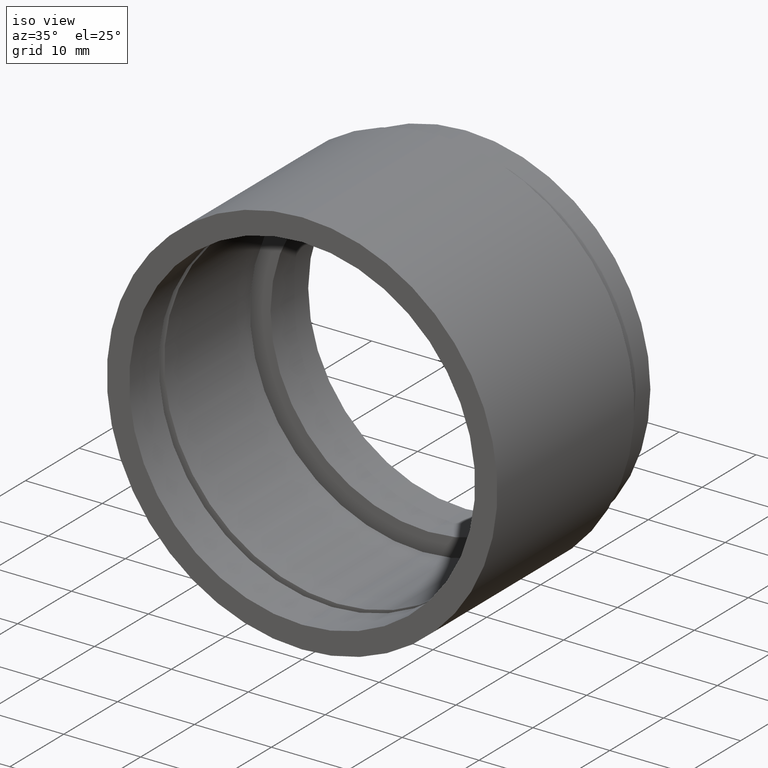
[diagram: clean part render]
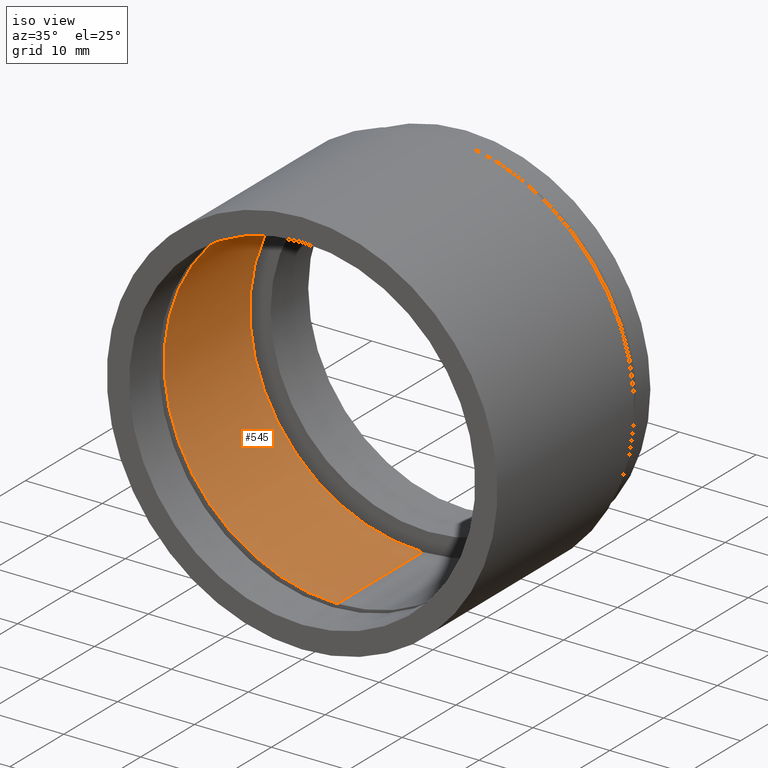
[diagram: same view with one face highlighted and labeled with its STEP entity id]
A machine part, iso view. The second image highlights one B-rep face of the part: STEP entity #545.
In plain terms, the highlighted cylindrical surface (partial cylindrical patch) has radius 22.5 mm, axis along (-0, 1, -0).
Its self-contained STEP definition (entity closure, byte-faithful):
#11 = CARTESIAN_POINT ( 'NONE',  ( 2.755455298081547100E-015, 161.3761669434274500, -22.50000000000002100 ) ) ;
#28 = CARTESIAN_POINT ( 'NONE',  ( 2.755455298081547100E-015, 22.39999999999997700, -22.50000000000002100 ) ) ;
#35 = EDGE_CURVE ( 'NONE', #54, #797, #493, .T. ) ;
#48 = DIRECTION ( 'NONE',  ( 0.0000000000000000000, 0.0000000000000000000, 1.000000000000000000 ) ) ;
#52 = ORIENTED_EDGE ( 'NONE', *, *, #489, .F. ) ;
#54 = VERTEX_POINT ( 'NONE', #127 ) ;
#58 = AXIS2_PLACEMENT_3D ( 'NONE', #679, #315, #614 ) ;
#67 = CYLINDRICAL_SURFACE ( 'NONE', #746, 22.50000000000002100 ) ;
#75 = EDGE_CURVE ( 'NONE', #54, #359, #591, .T. ) ;
#79 = DIRECTION ( 'NONE',  ( 0.0000000000000000000, 0.0000000000000000000, 1.000000000000000000 ) ) ;
#125 = FACE_OUTER_BOUND ( 'NONE', #223, .T. ) ;
#127 = CARTESIAN_POINT ( 'NONE',  ( 2.755455298081547100E-015, 6.499999999999977800, -22.50000000000002100 ) ) ;
#152 = LINE ( 'NONE', #491, #810 ) ;
#183 = DIRECTION ( 'NONE',  ( -0.0000000000000000000, 1.000000000000000000, -0.0000000000000000000 ) ) ;
#185 = DIRECTION ( 'NONE',  ( -0.0000000000000000000, 1.000000000000000000, -0.0000000000000000000 ) ) ;
#211 = DIRECTION ( 'NONE',  ( -0.0000000000000000000, 1.000000000000000000, -0.0000000000000000000 ) ) ;
#223 = EDGE_LOOP ( 'NONE', ( #258, #589, #638, #52 ) ) ;
#258 = ORIENTED_EDGE ( 'NONE', *, *, #35, .F. ) ;
#315 = DIRECTION ( 'NONE',  ( -0.0000000000000000000, 1.000000000000000000, -0.0000000000000000000 ) ) ;
#316 = AXIS2_PLACEMENT_3D ( 'NONE', #392, #211, #79 ) ;
#328 = DIRECTION ( 'NONE',  ( -0.0000000000000000000, 1.000000000000000000, -0.0000000000000000000 ) ) ;
#359 = VERTEX_POINT ( 'NONE', #28 ) ;
#392 = CARTESIAN_POINT ( 'NONE',  ( 0.0000000000000000000, 22.39999999999997700, 0.0000000000000000000 ) ) ;
#448 = CARTESIAN_POINT ( 'NONE',  ( 0.0000000000000000000, 22.39999999999997700, 22.50000000000002100 ) ) ;
#454 = CARTESIAN_POINT ( 'NONE',  ( 0.0000000000000000000, 6.499999999999977800, 22.50000000000002100 ) ) ;
#458 = CIRCLE ( 'NONE', #316, 22.50000000000002100 ) ;
#469 = VECTOR ( 'NONE', #328, 1000.000000000000000 ) ;
#484 = CARTESIAN_POINT ( 'NONE',  ( 0.0000000000000000000, 161.3761669434274500, 0.0000000000000000000 ) ) ;
#489 = EDGE_CURVE ( 'NONE', #797, #714, #152, .T. ) ;
#491 = CARTESIAN_POINT ( 'NONE',  ( 0.0000000000000000000, 161.3761669434274500, 22.50000000000002100 ) ) ;
#493 = CIRCLE ( 'NONE', #58, 22.50000000000002100 ) ;
#545 = ADVANCED_FACE ( 'NONE', ( #125 ), #67, .F. ) ;
#589 = ORIENTED_EDGE ( 'NONE', *, *, #75, .T. ) ;
#591 = LINE ( 'NONE', #11, #469 ) ;
#614 = DIRECTION ( 'NONE',  ( 0.0000000000000000000, 0.0000000000000000000, 1.000000000000000000 ) ) ;
#638 = ORIENTED_EDGE ( 'NONE', *, *, #763, .T. ) ;
#679 = CARTESIAN_POINT ( 'NONE',  ( 0.0000000000000000000, 6.499999999999977800, 0.0000000000000000000 ) ) ;
#714 = VERTEX_POINT ( 'NONE', #448 ) ;
#746 = AXIS2_PLACEMENT_3D ( 'NONE', #484, #183, #48 ) ;
#763 = EDGE_CURVE ( 'NONE', #359, #714, #458, .T. ) ;
#797 = VERTEX_POINT ( 'NONE', #454 ) ;
#810 = VECTOR ( 'NONE', #185, 1000.000000000000000 ) ;